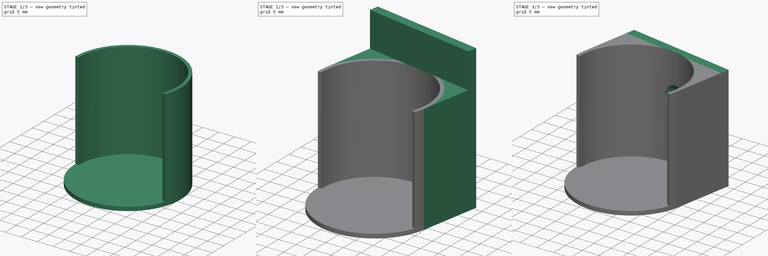
[diagram: build sequence overview — one tinted view per stage of 3, left to right]
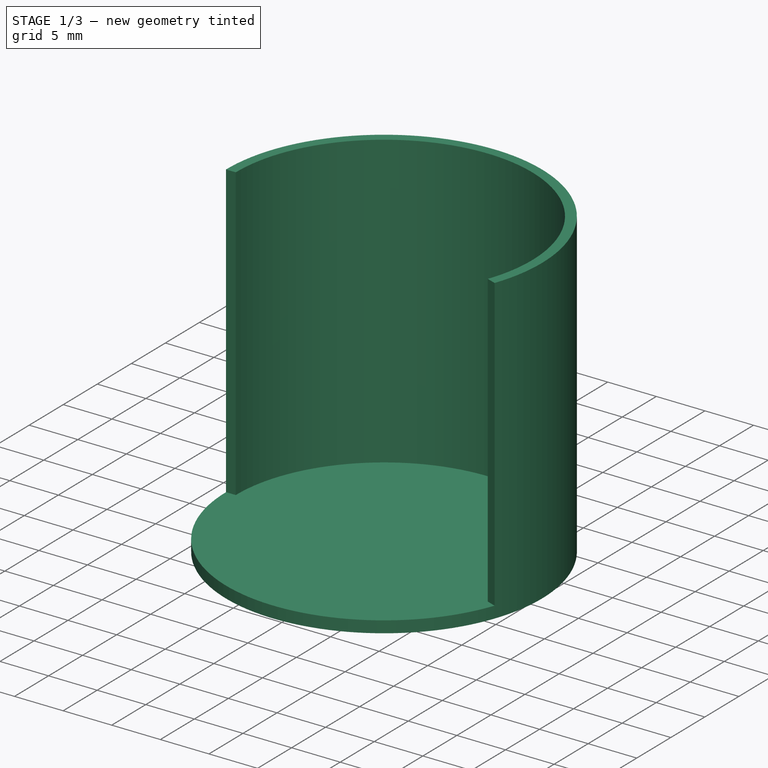
[diagram: stage 1 of 3 — iso view after this stage's code; geometry added in this stage tinted green]
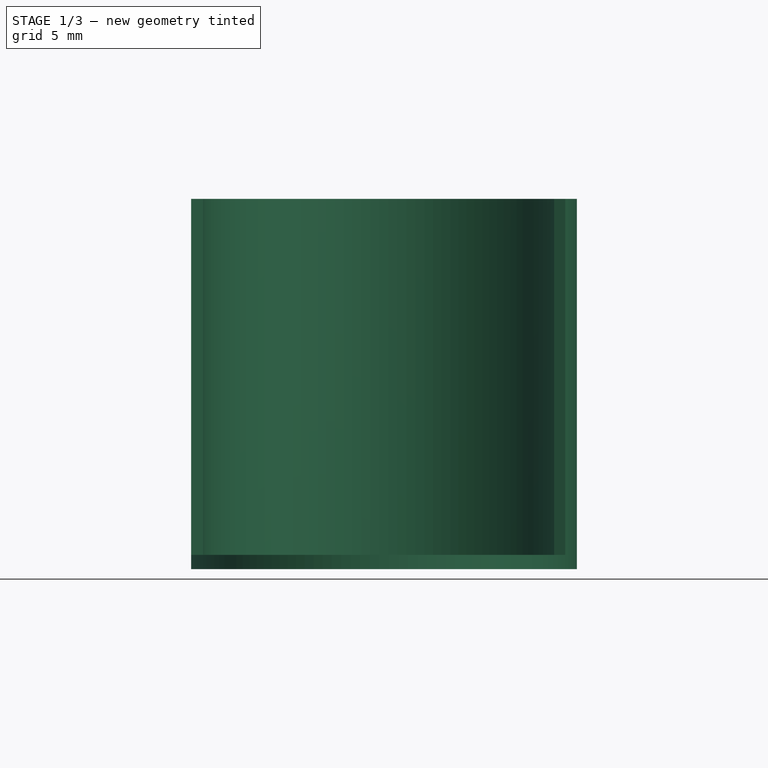
[diagram: stage 1 of 3 — front view after this stage's code; geometry added in this stage tinted green]
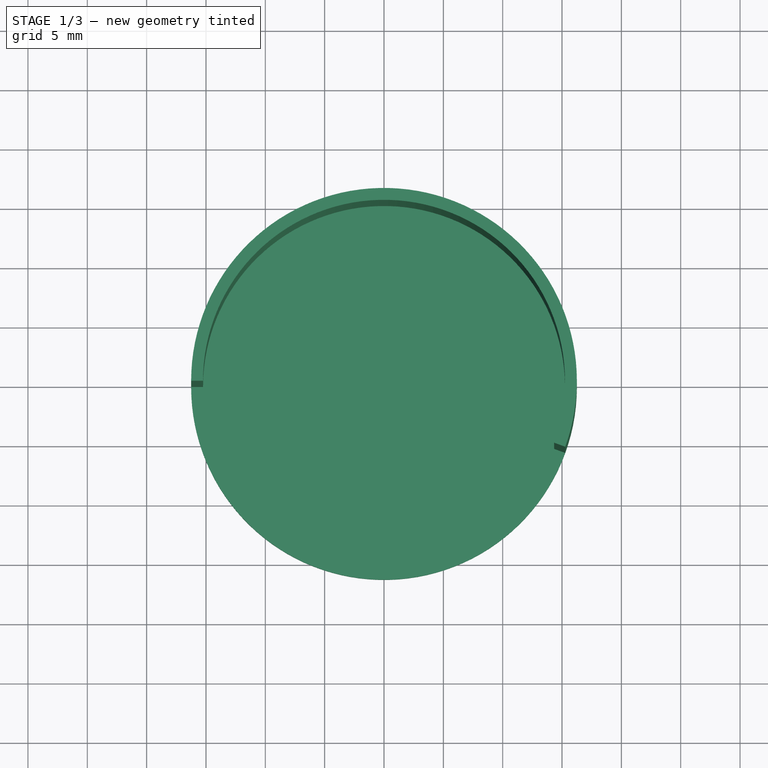
[diagram: stage 1 of 3 — top view after this stage's code; geometry added in this stage tinted green]
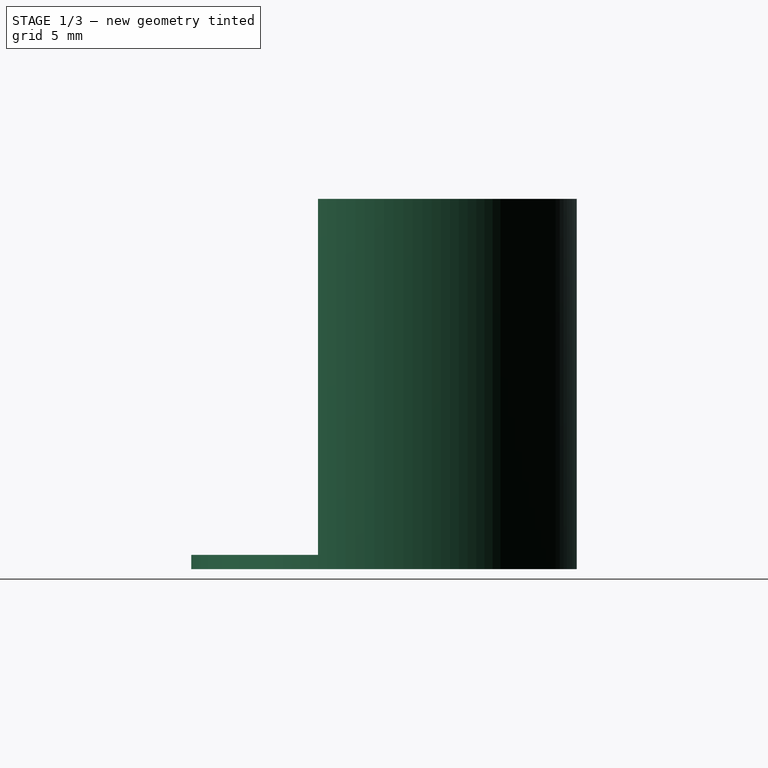
[diagram: stage 1 of 3 — right view after this stage's code; geometry added in this stage tinted green]
FCSTD DOCUMENT  (FreeCAD 0.19R22756 (Git))
Label: mi-stand-motion-sensor-holder
License: All rights reserved
LicenseURL: http://en.wikipedia.org/wiki/All_rights_reserved
objects: Sketcher::SketchObject×6, PartDesign::Pad×3, PartDesign::Revolution×1, PartDesign::Hole×1, PartDesign::Pocket×1, PartDesign::Body×1
note: 19 computed .brp shape members not serialized (recipe doc carries the construction recipe); baked Part::Feature solids carry a one-line shape summary decoded from their .brp

FEATURE [Sketcher::SketchObject] Sketch
  MapMode = 5
  Support = -> [XY_Plane]
  sketch-geometry (1):
    g0: Circle CenterX=0 CenterY=0 CenterZ=0 NormalX=0 NormalY=0 NormalZ=1 AngleXU=0 Radius=16.25
  constraints (2):
    c: Coincident(g0,g-1)
    c: Diameter(g0) = 32.5
FEATURE [PartDesign::Pad] Pad
  Direction = (1,1,1)
  Length = 1.2
  Length2 = 100
  Profile = -> Sketch
  Type = 0
FEATURE [Sketcher::SketchObject] Sketch001
  ExternalGeometry = -> [Pad]
  MapMode = 5
  Placement = pos=(0,0,0) rot=(1,0,0;1.5708rad)
  Support = -> [XZ_Plane]
  sketch-geometry (4):
    g0: LineSegment StartX=-16.25 StartY=1.2 StartZ=0 EndX=-15.25 EndY=1.2 EndZ=0
    g1: LineSegment StartX=-15.25 StartY=1.2 StartZ=0 EndX=-15.25 EndY=31.2 EndZ=0
    g2: LineSegment StartX=-15.25 StartY=31.2 StartZ=0 EndX=-16.25 EndY=31.2 EndZ=0
    g3: LineSegment StartX=-16.25 StartY=31.2 StartZ=0 EndX=-16.25 EndY=1.2 EndZ=0
  constraints (11):
    c: Coincident(g0,g1)
    c: Coincident(g1,g2)
    c: Coincident(g2,g3)
    c: Coincident(g3,g0)
    c: Horizontal(g0)
    c: Horizontal(g2)
    c: Vertical(g1)
    c: Vertical(g3)
    c: Coincident(g0,g-3)
    c: Distance(g2) = 1
    c: Distance(g1) = 30
FEATURE [PartDesign::Revolution] Revolution
  Angle = 200
  Axis = (0,2e-16,1)
  Base = (0,0,0)
  BaseFeature = -> Pad
  Profile = -> Sketch001
  ReferenceAxis = -> Sketch001 [V_Axis]
  Reversed = true
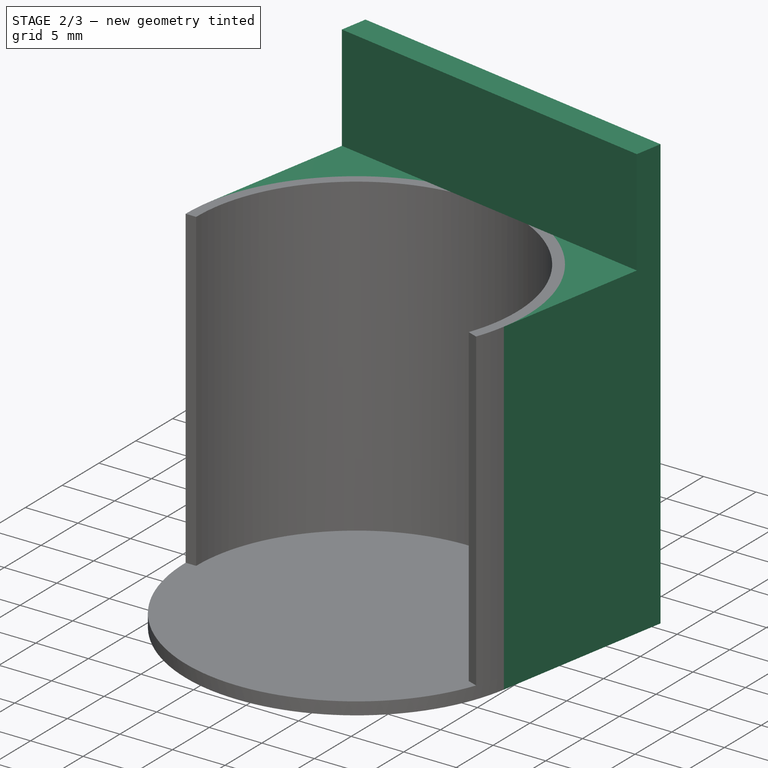
[diagram: stage 2 of 3 — iso view after this stage's code; geometry added in this stage tinted green]
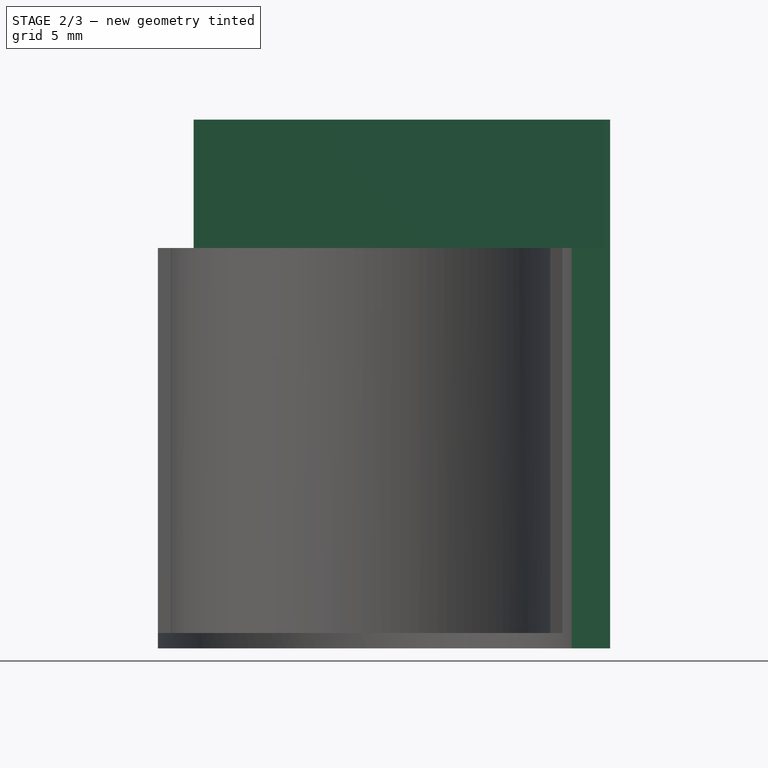
[diagram: stage 2 of 3 — front view after this stage's code; geometry added in this stage tinted green]
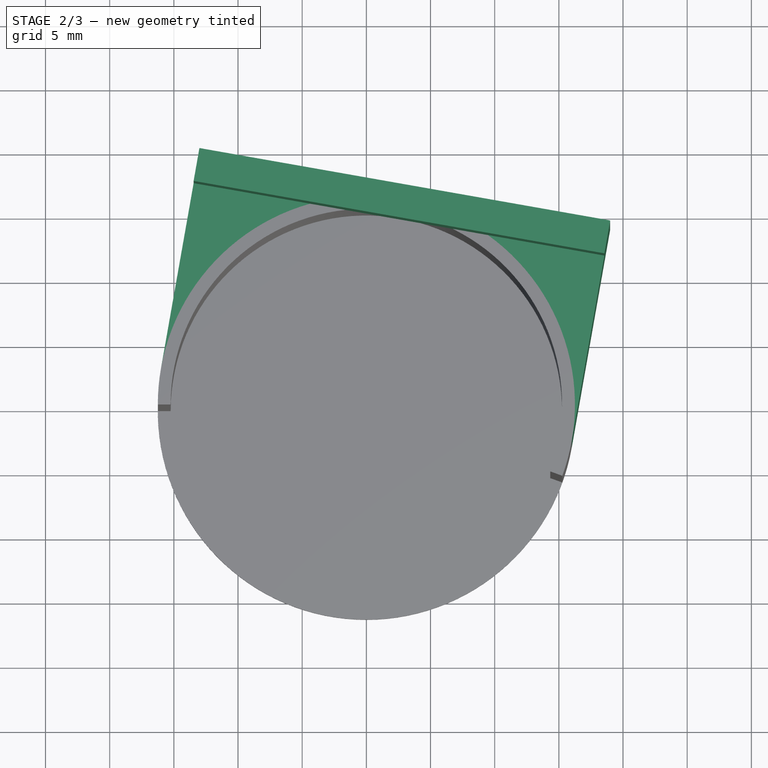
[diagram: stage 2 of 3 — top view after this stage's code; geometry added in this stage tinted green]
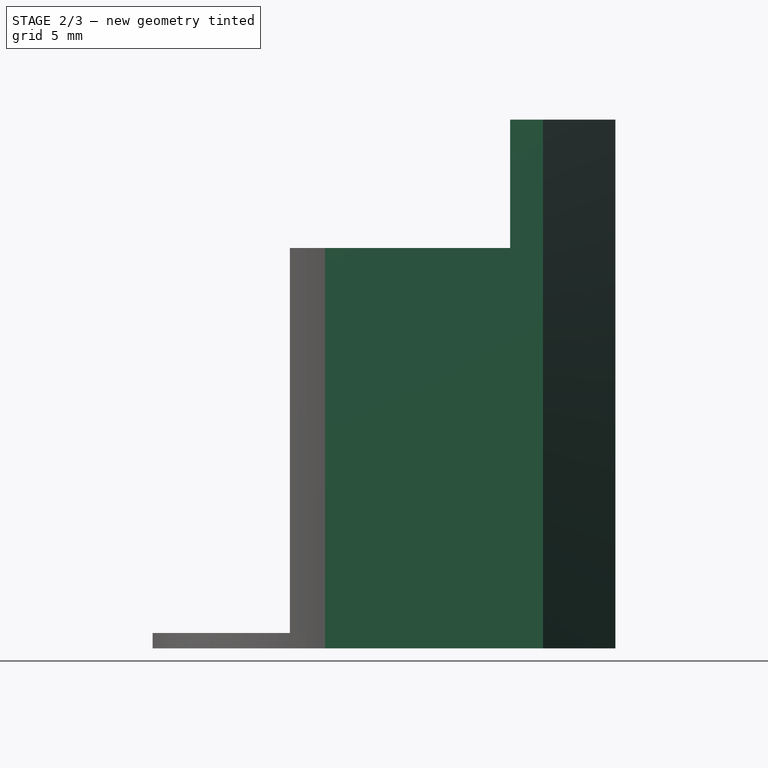
[diagram: stage 2 of 3 — right view after this stage's code; geometry added in this stage tinted green]
FEATURE [Sketcher::SketchObject] Sketch002
  ExternalGeometry = -> [Revolution]
  MapMode = 5
  Placement = pos=(0,0,0) rot=(1,0,0;3.14159rad)
  Support = -> [Revolution]
  sketch-geometry (4):
    g0: LineSegment StartX=-16.0031 StartY=-2.82178 StartZ=0 EndX=-13.0077 EndY=-19.8097 EndZ=0
    g1: LineSegment StartX=-13.0077 StartY=-19.8097 StartZ=0 EndX=18.9986 EndY=-14.1662 EndZ=0
    g2: LineSegment StartX=18.9986 StartY=-14.1662 StartZ=0 EndX=16.0031 EndY=2.82178 EndZ=0
    g3: ArcOfCircle CenterX=-1.2e-15 CenterY=-1.1e-15 CenterZ=0 NormalX=0 NormalY=0 NormalZ=1 AngleXU=0 Radius=16.25 StartAngle=3.31613 EndAngle=6.45772
  constraints (13):
    c: Tangent(g0,g-6)
    c: Coincident(g1,g0)
    c: Coincident(g2,g1)
    c: PointOnObject(g0,g-6)
    c: Tangent(g2,g-6)
    c: PointOnObject(g2,g-6)
    c: Perpendicular(g1,g0)
    c: Parallel(g2,g0)
    c: Distance(g-1,g1) = 17.25
    c: Angle(g0,g-1) = 1.39626
    c: Coincident(g3,g0)
    c: Coincident(g3,g2)
    c: Tangent(g3,g-6)
FEATURE [PartDesign::Pad] Pad001
  BaseFeature = -> Revolution
  Direction = (1,1,1)
  Length = 31.2
  Length2 = 100
  Profile = -> Sketch002
  Reversed = true
  Type = 0
FEATURE [Sketcher::SketchObject] Sketch003
  ExternalGeometry = -> [Pad001]
  MapMode = 5
  Placement = pos=(0,6.9e-15,31.2) rot=(0,0,1;0rad)
  Support = -> [Pad001]
  sketch-geometry (4):
    g0: LineSegment StartX=-13.0077 StartY=19.8097 StartZ=0 EndX=-13.4594 EndY=17.2477 EndZ=0
    g1: LineSegment StartX=-13.4594 StartY=17.2477 StartZ=0 EndX=18.5468 EndY=11.6042 EndZ=0
    g2: LineSegment StartX=18.5468 StartY=11.6042 StartZ=0 EndX=18.9986 EndY=14.1662 EndZ=0
    g3: LineSegment StartX=18.9986 StartY=14.1662 StartZ=0 EndX=-13.0077 EndY=19.8097 EndZ=0
  constraints (11):
    c: Coincident(g1,g0)
    c: Coincident(g2,g1)
    c: Coincident(g3,g2)
    c: Coincident(g3,g0)
    c: Parallel(g1,g3)
    c: Parallel(g2,g0)
    c: Perpendicular(g3,g0)
    c: Parallel(g3,g-3)
    c: PointOnObject(g2,g-3)
    c: PointOnObject(g1,g-6)
    c: PointOnObject(g0,g-5)
FEATURE [PartDesign::Pad] Pad002
  BaseFeature = -> Pad001
  Direction = (1,1,1)
  Length = 10
  Length2 = 100
  Profile = -> Sketch003
  Type = 0
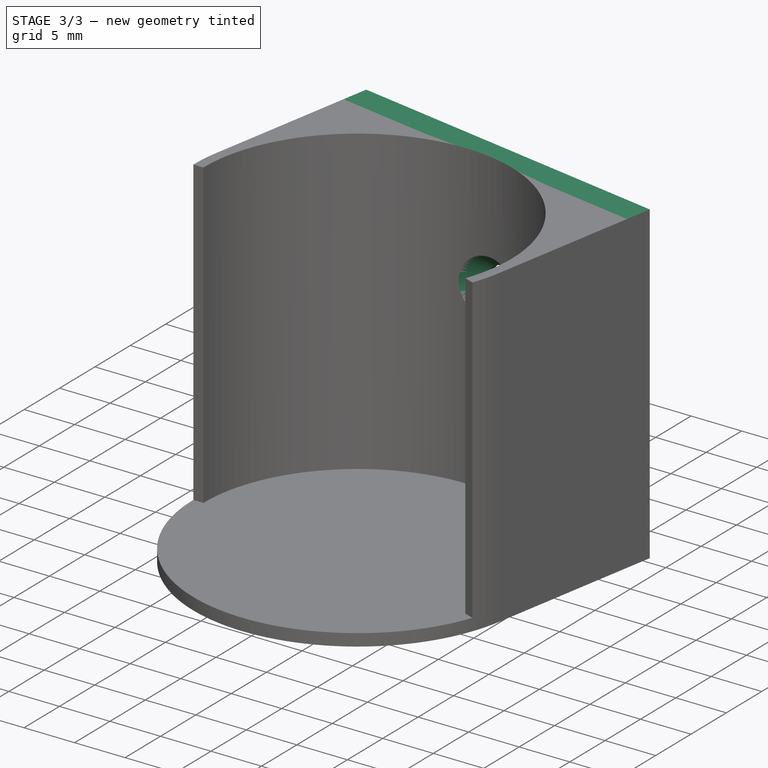
[diagram: stage 3 of 3 — iso view after this stage's code; geometry added in this stage tinted green]
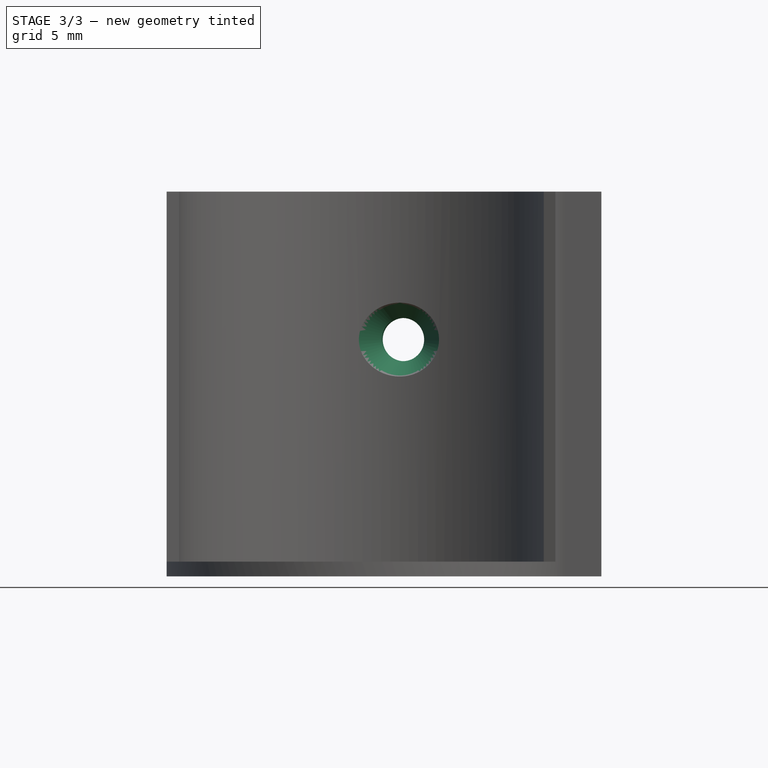
[diagram: stage 3 of 3 — front view after this stage's code; geometry added in this stage tinted green]
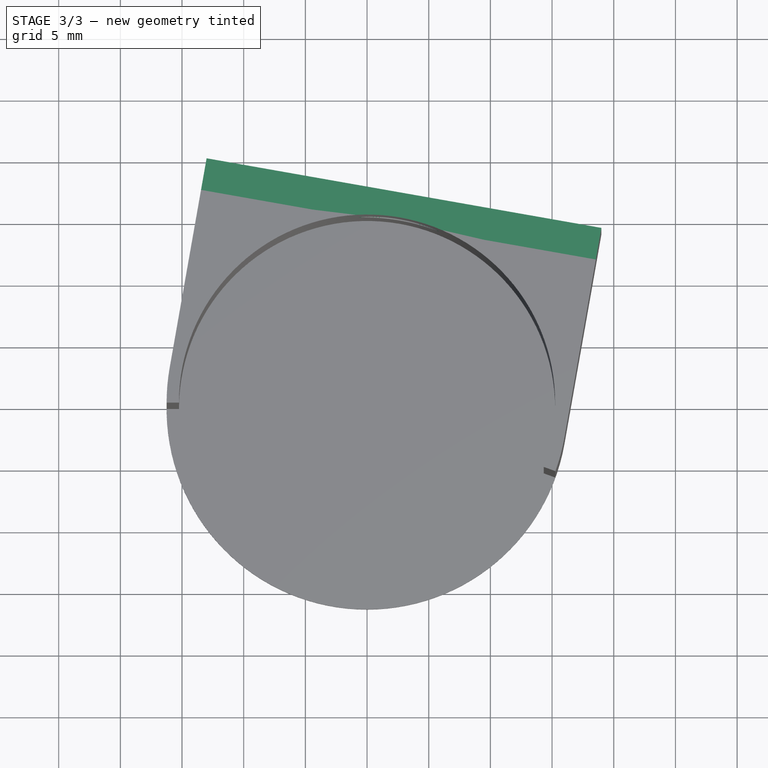
[diagram: stage 3 of 3 — top view after this stage's code; geometry added in this stage tinted green]
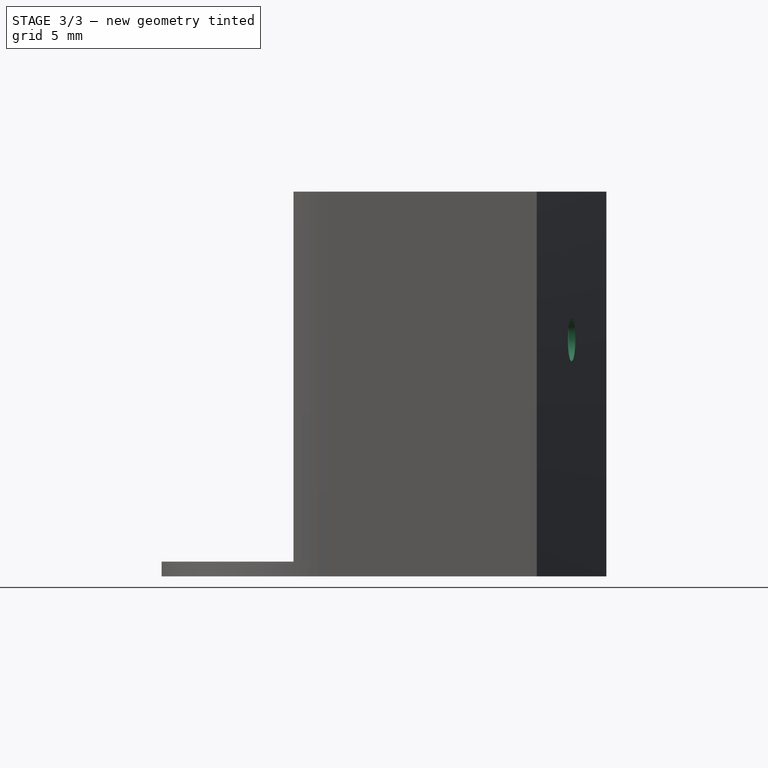
[diagram: stage 3 of 3 — right view after this stage's code; geometry added in this stage tinted green]
FEATURE [Sketcher::SketchObject] Sketch004
  ExternalGeometry = -> [Pad002]
  MapMode = 5
  Placement = pos=(2.54369,14.426,-3.2e-15) rot=(0.992433,-0.086827,-0.086827;1.57839rad)
  Support = -> [Pad002]
  sketch-geometry (1):
    g0: Circle CenterX=0 CenterY=19.2 CenterZ=0 NormalX=0 NormalY=0 NormalZ=1 AngleXU=0 Radius=1.5
  constraints (3):
    c: PointOnObject(g0,g-2)
    c: Distance(g0,g-3) = 12
    c: Diameter(g0) = 3
FEATURE [PartDesign::Hole] Hole
  BaseFeature = -> Pad002
  Depth = 5.85
  DepthType = 0
  Diameter = 3.5
  DrillPoint = 0
  DrillPointAngle = 118
  HoleCutCountersinkAngle = 80
  HoleCutDepth = 0
  HoleCutDiameter = 7
  HoleCutType = 2
  ModelActualThread = false
  Profile = -> Sketch004
  Tapered = false
  TaperedAngle = 90
  ThreadAngle = 0
  ThreadClass = 0
  ThreadCutOffInner = 0
  ThreadCutOffOuter = 0
  ThreadDirection = 0
  ThreadFit = 0
  ThreadPitch = 0
  ThreadSize = 0
  ThreadType = 0
  Threaded = false
FEATURE [Sketcher::SketchObject] Sketch005
  ExternalGeometry = -> [Hole]
  MapMode = 5
  Placement = pos=(0,0,41.2) rot=(0,0,1;0rad)
  Support = -> [Hole]
  sketch-geometry (4):
    g0: LineSegment StartX=-13.0077 StartY=19.8097 StartZ=0 EndX=-13.4594 EndY=17.2477 EndZ=0
    g1: LineSegment StartX=-13.4594 StartY=17.2477 StartZ=0 EndX=18.5468 EndY=11.6042 EndZ=0
    g2: LineSegment StartX=18.5468 StartY=11.6042 StartZ=0 EndX=18.9986 EndY=14.1662 EndZ=0
    g3: LineSegment StartX=18.9986 StartY=14.1662 StartZ=0 EndX=-13.0077 EndY=19.8097 EndZ=0
  constraints (8):
    c: Coincident(g0,g-4)
    c: Coincident(g0,g-5)
    c: Coincident(g1,g0)
    c: Coincident(g1,g-6)
    c: Coincident(g2,g1)
    c: Coincident(g2,g-6)
    c: Coincident(g3,g2)
    c: Coincident(g3,g0)
FEATURE [PartDesign::Pocket] Pocket
  BaseFeature = -> Hole
  Length = 0
  Length2 = 100
  Profile = -> Sketch005
  Type = 3
  UpToFace = -> Hole [Face17]
FEATURE [PartDesign::Body] Body
  Group = -> [Sketch,Pad,Sketch001,Revolution,Sketch002,Pad001,Sketch003,Pad002,Sketch004,Hole,Sketch005,Pocket]
  Origin = -> Origin
  Tip = -> Pocket
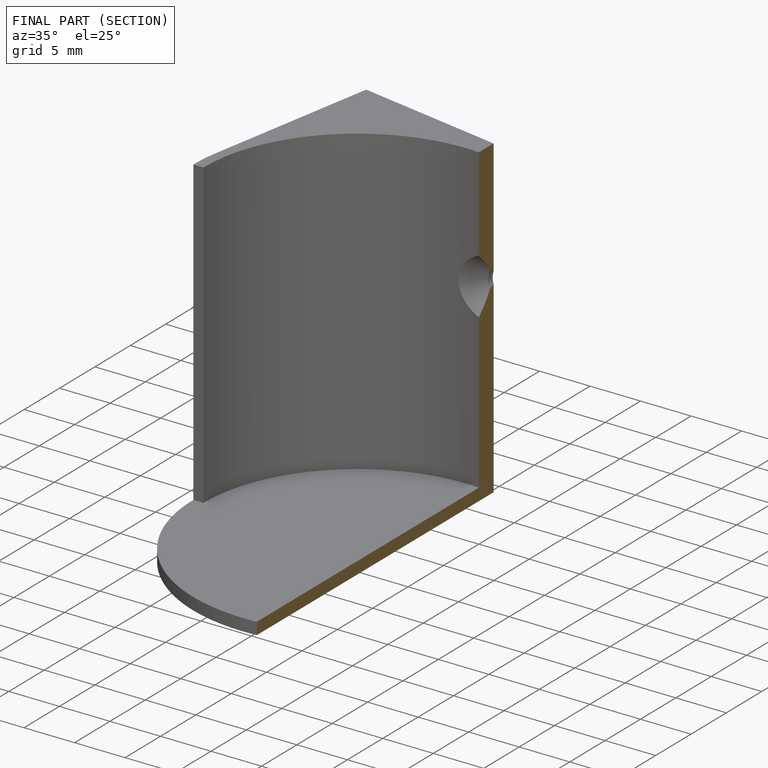
[diagram: finished part — half-section view (interior)]
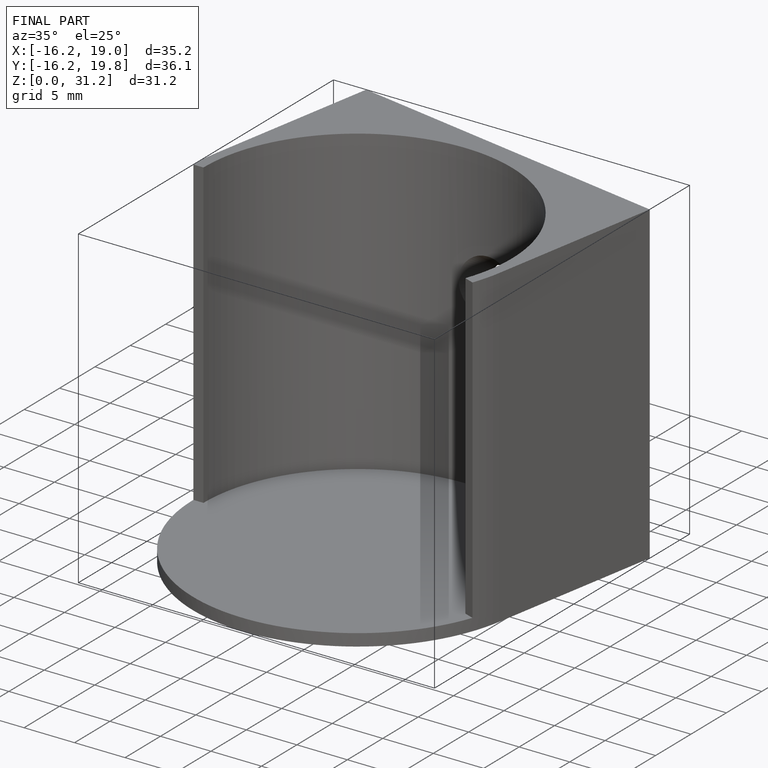
[diagram: finished part — iso view with bounding-box wireframe]
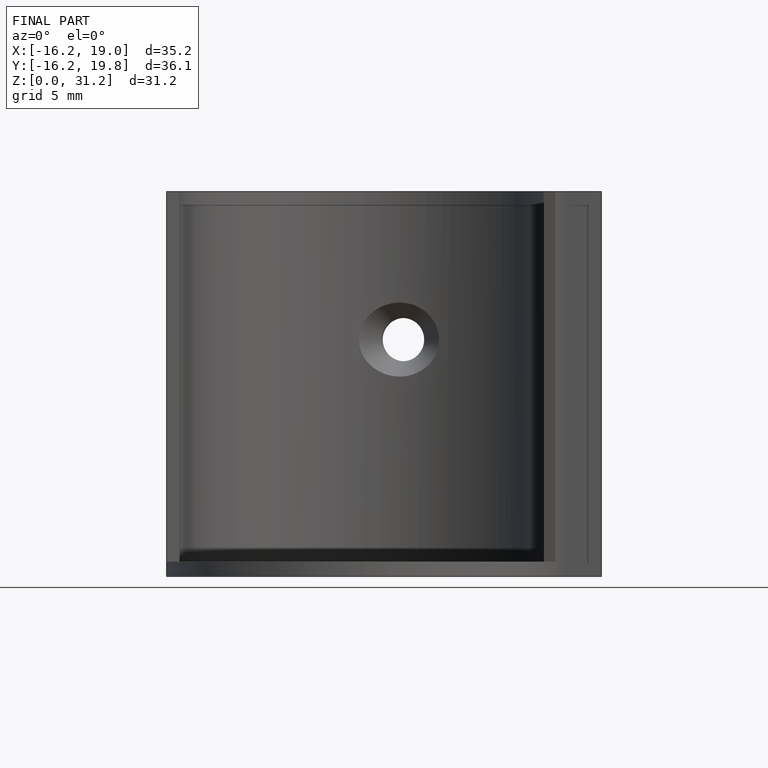
[diagram: finished part — front view with bounding-box wireframe]
